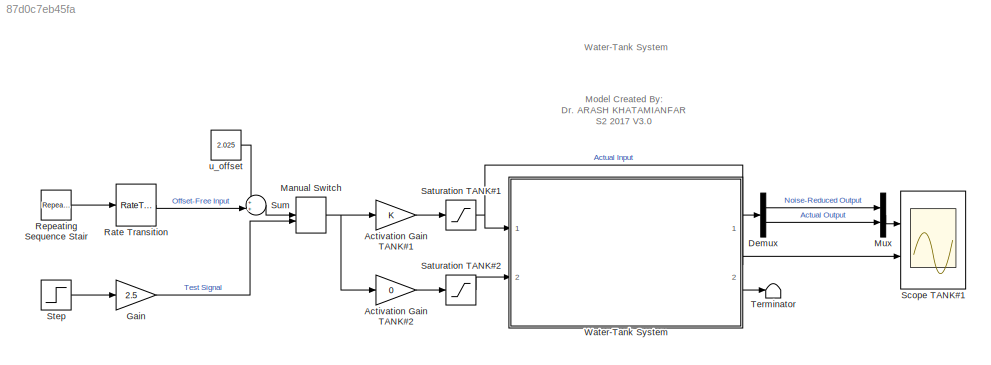
MODEL slx_87d0c7eb45fa
KIND model
CONFIG AbsTol = auto
CONFIG FixedStep = 0.75
CONFIG MaxStep = auto
CONFIG MinStep = auto
CONFIG RelTol = 1e-3
CONFIG SampleTimeConstraint = Unconstrained
CONFIG Solver = FixedStepAuto
CONFIG SolverMode = Auto
CONFIG SolverName = FixedStepAuto
CONFIG StartTime = 0.0
CONFIG StopTime = inf
BLOCK [Gain] Activation Gain TANK#1
  OutDataTypeStr = Inherit: Inherit via internal rule
  ParamDataTypeStr = Inherit: Inherit via internal rule
  SaturateOnIntegerOverflow = off
BLOCK [Gain] Activation Gain TANK#2
  Gain = 0
  OutDataTypeStr = Inherit: Inherit via internal rule
  ParamDataTypeStr = Inherit: Inherit via internal rule
  SaturateOnIntegerOverflow = off
BLOCK [Demux] Demux
  DisplayOption = bar
  Outputs = 2
  Ports = [1, 2]
BLOCK [Gain] Gain
  Gain = 2.5
  OutDataTypeStr = Inherit: Inherit via internal rule
  ParamDataTypeStr = Inherit: Inherit via internal rule
  SaturateOnIntegerOverflow = off
BLOCK [ManualSwitch] Manual Switch
BLOCK [Mux] Mux
  DisplayOption = bar
  Inputs = 2
  Ports = [2, 1]
BLOCK [RateTransition] Rate Transition
  OutPortSampleTime = 0.75
BLOCK [Reference] Repeating Sequence Stair  REF=simulink/Sources/Repeating
Sequence
Stair
  Ports = [0, 1]
  SourceBlock = simulink/Sources/Repeating\nSequence\nStair
  SourceType = Repeating Sequence Stair
BLOCK [Saturate] Saturation TANK#1
  InputPortMap = u0
  LowerLimit = 0
  Ports = [1, 1]
  UpperLimit = 3
BLOCK [Saturate] Saturation TANK#2
  InputPortMap = u0
  LowerLimit = 0
  Ports = [1, 1]
  UpperLimit = 5
BLOCK [Scope] Scope TANK#1
  NumInputPorts = 2
  Ports = [2]
  ScopeSpecificationString = Simulink.scopes.TimeScopeBlockCfg('CurrentConfiguration', extmgr.ConfigurationSet(extmgr.Configuration('Core','General UI',true,'FigureColor',[0.941176470588235 0.941176470588235 0.941176470588235],'DisplayFullSourceName',true),extmgr.Configuration('Core','Source UI',true),extmgr.Configuration('Sources','WiredSimulink',true,'DataLoggingVariableName','LogData','DataLogging',true,'DataLoggingDecimat...<+4624ch>
BLOCK [Step] Step
  SampleTime = 0
  Time = 0
BLOCK [Sum] Sum
  IconShape = round
  InputSameDT = off
  Inputs = ++|
  OutDataTypeStr = Inherit: Inherit via internal rule
  Ports = [2, 1]
  SaturateOnIntegerOverflow = off
BLOCK [Terminator] Terminator
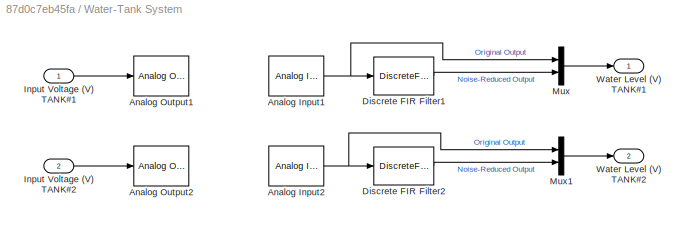
BLOCK [SubSystem] Water-Tank System
  Ports = [2, 2]
  RequestExecContextInheritance = off
  Variant = off
BLOCK [Reference] Water-Tank System/Analog Input1  REF=sldrtlib/Analog Input
  AttributesFormatString = National Instruments\nPCI-MIO-16E-4 [auto]
  Ports = [0, 1]
  SourceBlock = sldrtlib/Analog Input
  SourceType = Simulink Desktop Real-Time Analog Input
BLOCK [Reference] Water-Tank System/Analog Input2  REF=sldrtlib/Analog Input
  AttributesFormatString = National Instruments\nPCI-MIO-16E-4 [auto]
  Ports = [0, 1]
  SourceBlock = sldrtlib/Analog Input
  SourceType = Simulink Desktop Real-Time Analog Input
BLOCK [Reference] Water-Tank System/Analog Output1  REF=sldrtlib/Analog Output
  AttributesFormatString = National Instruments\nPCI-MIO-16E-4 [auto]
  Ports = [1]
  SourceBlock = sldrtlib/Analog Output
  SourceType = Simulink Desktop Real-Time Analog Output
BLOCK [Reference] Water-Tank System/Analog Output2  REF=sldrtlib/Analog Output
  AttributesFormatString = National Instruments\nPCI-MIO-16E-4 [auto]
  Ports = [1]
  SourceBlock = sldrtlib/Analog Output
  SourceType = Simulink Desktop Real-Time Analog Output
BLOCK [DiscreteFir] Water-Tank System/Discrete FIR Filter1
  Coefficients = [0.2 0.2 0.2 0.2 0.2]
  InputPortMap = u0
  OutputPortMap = o0
  Ports = [1, 1]
  SampleTime = 0.75
BLOCK [DiscreteFir] Water-Tank System/Discrete FIR Filter2
  Coefficients = [0.2 0.2 0.2 0.2 0.2]
  InputPortMap = u0
  OutputPortMap = o0
  Ports = [1, 1]
  SampleTime = 0.75
BLOCK [Inport] Water-Tank System/Input Voltage (V) TANK#1
  IconDisplay = Port number
BLOCK [Inport] Water-Tank System/Input Voltage (V) TANK#2
  IconDisplay = Port number
  Port = 2
BLOCK [Mux] Water-Tank System/Mux
  DisplayOption = bar
  Inputs = 2
  Ports = [2, 1]
BLOCK [Mux] Water-Tank System/Mux1
  DisplayOption = bar
  Inputs = 2
  Ports = [2, 1]
BLOCK [Outport] Water-Tank System/Water Level (V) TANK#1
  IconDisplay = Port number
BLOCK [Outport] Water-Tank System/Water Level (V) TANK#2
  IconDisplay = Port number
  Port = 2
BLOCK [Constant] u_offset
  Value = 2.025
ANNOTATION (root): Model Created By: Dr. ARASH KHATAMIANFAR S2 2017 V3.0
ANNOTATION (root): Water-Tank System
LINE Activation Gain TANK#1:1 -> Saturation TANK#1:1
LINE Activation Gain TANK#2:1 -> Saturation TANK#2:1
LINE Demux:1 -> Mux:1
LINE Demux:2 -> Mux:2
LINE Gain:1 -> Manual Switch:2
NET Manual Switch:1 -> Activation Gain TANK#1:1, Activation Gain TANK#2:1
LINE Mux:1 -> Scope TANK#1:1
LINE Rate Transition:1 -> Sum:2
LINE Repeating Sequence Stair:1 -> Rate Transition:1
NET Saturation TANK#1:1 -> Scope TANK#1:2, Water-Tank System:1
LINE Saturation TANK#2:1 -> Water-Tank System:2
LINE Step:1 -> Gain:1
LINE Sum:1 -> Manual Switch:1
NET Water-Tank System/Analog Input1:1 -> Water-Tank System/Discrete FIR Filter1:1, Water-Tank System/Mux:1
NET Water-Tank System/Analog Input2:1 -> Water-Tank System/Discrete FIR Filter2:1, Water-Tank System/Mux1:1
LINE Water-Tank System/Discrete FIR Filter1:1 -> Water-Tank System/Mux:2
LINE Water-Tank System/Discrete FIR Filter2:1 -> Water-Tank System/Mux1:2
LINE Water-Tank System/Input Voltage (V) TANK#1:1 -> Water-Tank System/Analog Output1:1
LINE Water-Tank System/Input Voltage (V) TANK#2:1 -> Water-Tank System/Analog Output2:1
LINE Water-Tank System/Mux1:1 -> Water-Tank System/Water Level (V) TANK#2:1
LINE Water-Tank System/Mux:1 -> Water-Tank System/Water Level (V) TANK#1:1
LINE Water-Tank System:1 -> Demux:1
LINE Water-Tank System:2 -> Terminator:1
LINE u_offset:1 -> Sum:1
note: NET lines group one-source signal fan-out (src -> all destinations, sorted); 1:1 wires keep LINE
